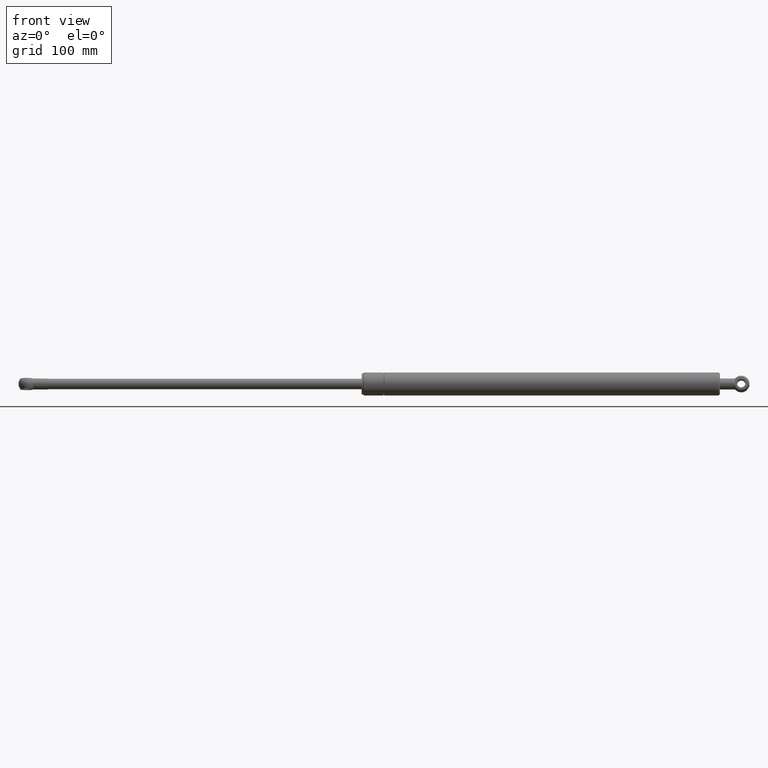
[diagram: clean part render]
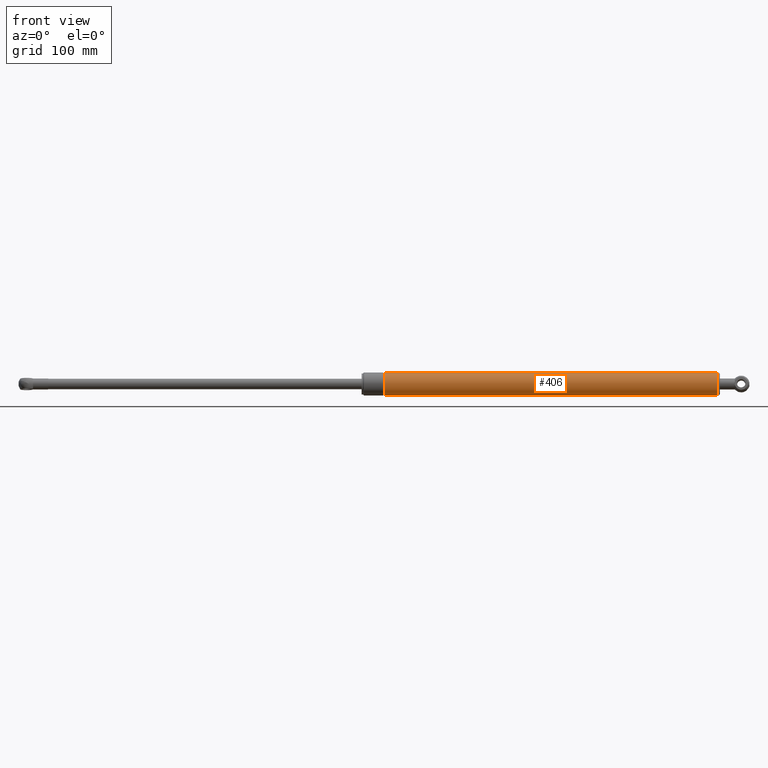
[diagram: same view with one face highlighted and labeled with its STEP entity id]
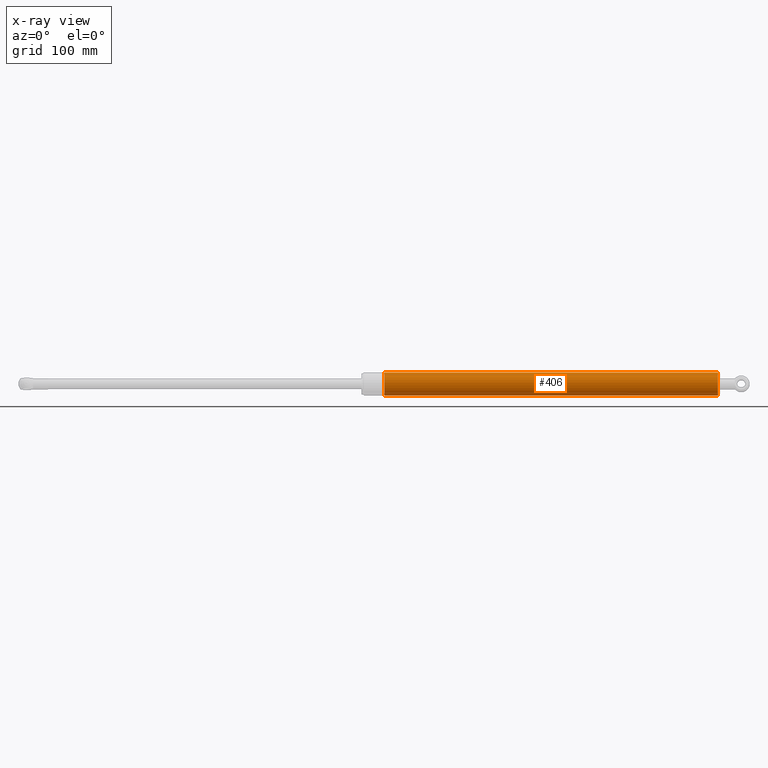
[diagram: x-ray of the same camera — body ghosted, the highlighted face saturated]
A machine part, front view. The second image highlights one B-rep face of the part: STEP entity #406.
The next image is the same camera in x-ray: the body ghosted, the highlighted face saturated — about 0% of this face is hidden behind the body in this view.
In plain terms, the highlighted cylindrical surface (bore or boss wall) has radius 11 mm, axis along (-1, 0, 0).
Its self-contained STEP definition (entity closure, byte-faithful):
#85=FACE_BOUND('',#181,.T.);
#106=CYLINDRICAL_SURFACE('',#470,11.);
#132=FACE_OUTER_BOUND('',#180,.T.);
#180=EDGE_LOOP('',(#354));
#181=EDGE_LOOP('',(#355));
#225=CIRCLE('',#460,11.);
#231=CIRCLE('',#469,11.);
#257=VERTEX_POINT('',#722);
#263=VERTEX_POINT('',#737);
#293=EDGE_CURVE('',#257,#257,#225,.T.);
#299=EDGE_CURVE('',#263,#263,#231,.T.);
#354=ORIENTED_EDGE('',*,*,#293,.F.);
#355=ORIENTED_EDGE('',*,*,#299,.F.);
#406=ADVANCED_FACE('',(#132,#85),#106,.T.);
#460=AXIS2_PLACEMENT_3D('',#723,#572,#573);
#469=AXIS2_PLACEMENT_3D('',#738,#590,#591);
#470=AXIS2_PLACEMENT_3D('',#739,#592,#593);
#572=DIRECTION('center_axis',(-1.,0.,0.));
#573=DIRECTION('ref_axis',(0.,0.,1.));
#590=DIRECTION('center_axis',(1.,0.,0.));
#591=DIRECTION('ref_axis',(0.,1.22464679914735E-16,-1.));
#592=DIRECTION('center_axis',(-1.,0.,0.));
#593=DIRECTION('ref_axis',(0.,0.,1.));
#722=CARTESIAN_POINT('',(21.5,0.,11.));
#723=CARTESIAN_POINT('Origin',(21.5,0.,0.));
#737=CARTESIAN_POINT('',(338.998533721188,-2.69422295812418E-15,11.));
#738=CARTESIAN_POINT('Origin',(338.998533721188,0.,0.));
#739=CARTESIAN_POINT('Origin',(181.249266860594,0.,0.));